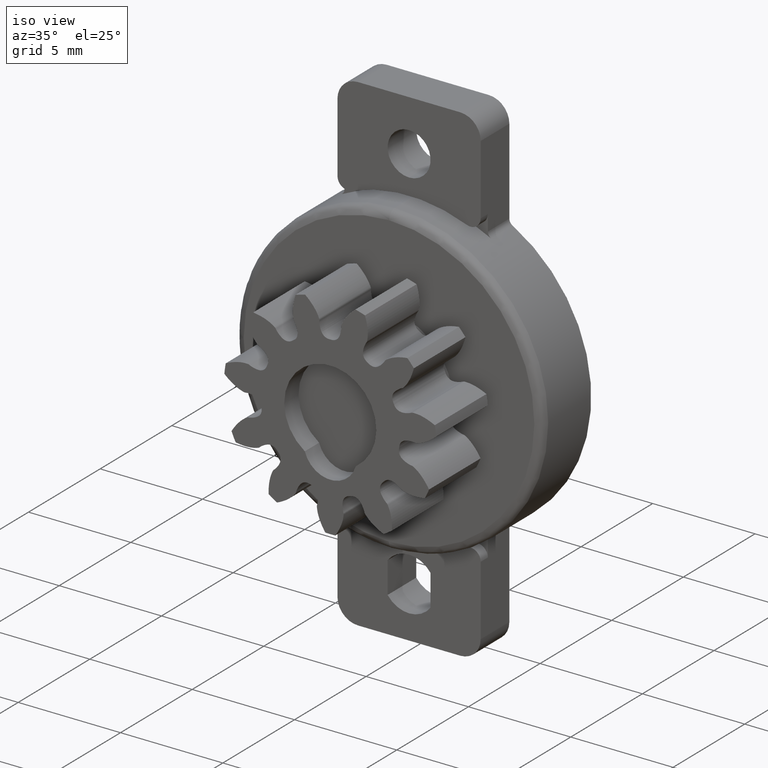
[diagram: clean part render]
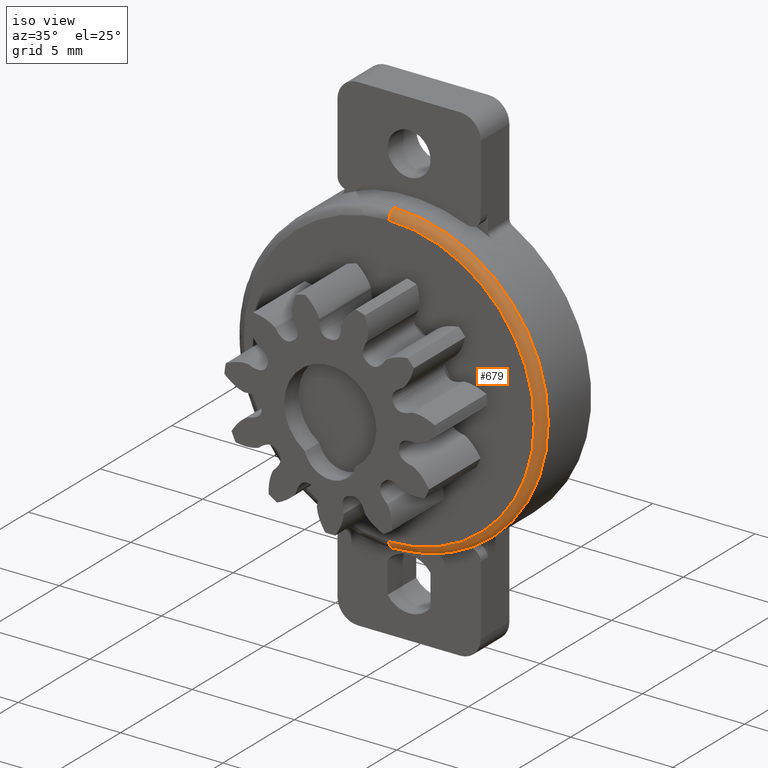
[diagram: same view with one face highlighted and labeled with its STEP entity id]
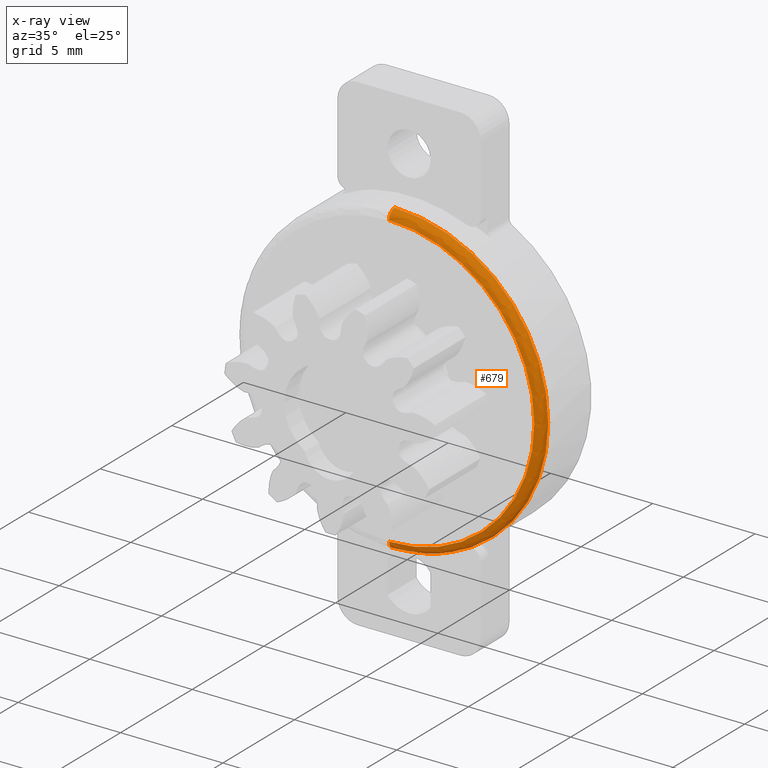
[diagram: x-ray of the same camera — body ghosted, the highlighted face saturated]
A machine part, iso view. The second image highlights one B-rep face of the part: STEP entity #679.
The next image is the same camera in x-ray: the body ghosted, the highlighted face saturated — about 0% of this face is hidden behind the body in this view.
In plain terms, the highlighted face is a freeform B-spline surface patch.
Its self-contained STEP definition (entity closure, byte-faithful):
#679=ADVANCED_FACE('',(#7083),#7082,.T.);
#7082=( BOUNDED_SURFACE() B_SPLINE_SURFACE( 2,2,((#10412,#10413,#10414,#10415,#10416),(#10417,#10418,#10419,#10420,#10421),(#10422,#10423,#10424,#10425,#10426),(#10427,#10428,#10429,#10430,#10431),(#10432,#10433,#10434,#10435,#10436)), .UNSPECIFIED.,.F.,.F.,.F.) B_SPLINE_SURFACE_WITH_KNOTS((3,2,3),(3,2,3),(0.00000000000E+00,5.00000000000E-01,1.00000000000E+00),(0.00000000000E+00,5.00000000000E-01,1.00000000000E+00), .UNSPECIFIED. ) GEOMETRIC_REPRESENTATION_ITEM() RATIONAL_B_SPLINE_SURFACE(((1.00000000000E+00,7.07106765760E-01,1.00000000000E+00,7.07106765760E-01,1.00000000000E+00),(7.07106781187E-01,4.99999989092E-01,7.07106781187E-01,4.99999989092E-01,7.07106781187E-01),(1.00000000000E+00,7.07106765760E-01,1.00000000000E+00,7.07106765760E-01,1.00000000000E+00),(7.07106781187E-01,4.99999989092E-01,7.07106781187E-01,4.99999989092E-01,7.07106781187E-01),(1.00000000000E+00,7.07106765760E-01,1.00000000000E+00,7.07106765760E-01,1.00000000000E+00))) REPRESENTATION_ITEM('') SURFACE() );
#7083=FACE_OUTER_BOUND('',#10437,.T.);
#10412=CARTESIAN_POINT('',(-3.03339938293E-20,-2.99999995499E+00,-7.50000002407E+00));
#10413=CARTESIAN_POINT('',(-3.03339938293E-20,-3.40000001745E+00,-7.50000002407E+00));
#10414=CARTESIAN_POINT('',(-2.87161805776E-20,-3.40000000000E+00,-7.09999996160E+00));
#10415=CARTESIAN_POINT('',(-2.70983673259E-20,-3.39999998255E+00,-6.69999989914E+00));
#10416=CARTESIAN_POINT('',(-2.70983674671E-20,-2.99999992008E+00,-6.69999993404E+00));
#10417=CARTESIAN_POINT('',(7.50000002407E+00,-2.99999995499E+00,-7.50000002407E+00));
#10418=CARTESIAN_POINT('',(7.50000002407E+00,-3.40000001745E+00,-7.50000002407E+00));
#10419=CARTESIAN_POINT('',(7.09999996160E+00,-3.40000000000E+00,-7.09999996160E+00));
#10420=CARTESIAN_POINT('',(6.69999989914E+00,-3.39999998255E+00,-6.69999989914E+00));
#10421=CARTESIAN_POINT('',(6.69999993404E+00,-2.99999992008E+00,-6.69999993404E+00));
#10422=CARTESIAN_POINT('',(7.50000002407E+00,-2.99999995499E+00,-4.59272885148E-16));
#10423=CARTESIAN_POINT('',(7.50000002407E+00,-3.40000001745E+00,-4.59272885148E-16));
#10424=CARTESIAN_POINT('',(7.09999996160E+00,-3.40000000000E+00,-4.34778327527E-16));
#10425=CARTESIAN_POINT('',(6.69999989914E+00,-3.39999998255E+00,-4.10283769906E-16));
#10426=CARTESIAN_POINT('',(6.69999993404E+00,-2.99999992008E+00,-4.10283772043E-16));
#10427=CARTESIAN_POINT('',(7.50000002407E+00,-2.99999995499E+00,7.50000002407E+00));
#10428=CARTESIAN_POINT('',(7.50000002407E+00,-3.40000001745E+00,7.50000002407E+00));
#10429=CARTESIAN_POINT('',(7.09999996160E+00,-3.40000000000E+00,7.09999996160E+00));
#10430=CARTESIAN_POINT('',(6.69999989914E+00,-3.39999998255E+00,6.69999989914E+00));
#10431=CARTESIAN_POINT('',(6.69999993404E+00,-2.99999992008E+00,6.69999993404E+00));
#10432=CARTESIAN_POINT('',(9.18515436302E-16,-2.99999995499E+00,7.50000002407E+00));
#10433=CARTESIAN_POINT('',(9.18515436302E-16,-3.40000001745E+00,7.50000002407E+00));
#10434=CARTESIAN_POINT('',(8.69527938873E-16,-3.40000000000E+00,7.09999996160E+00));
#10435=CARTESIAN_POINT('',(8.20540441444E-16,-3.39999998255E+00,6.69999989914E+00));
#10436=CARTESIAN_POINT('',(8.20540445719E-16,-2.99999992008E+00,6.69999993404E+00));
#10437=EDGE_LOOP('',(#14246,#14247,#14248,#14249));
#14246=ORIENTED_EDGE('',*,*,#16177,.T.);
#14247=ORIENTED_EDGE('',*,*,#16174,.T.);
#14248=ORIENTED_EDGE('',*,*,#14314,.F.);
#14249=ORIENTED_EDGE('',*,*,#16176,.F.);
#14314=EDGE_CURVE('',#16459,#16460,#16461,.T.);
#16174=EDGE_CURVE('',#28850,#16460,#28851,.T.);
#16176=EDGE_CURVE('',#28857,#16459,#28864,.T.);
#16177=EDGE_CURVE('',#28857,#28850,#28870,.T.);
#16459=VERTEX_POINT('',#29083);
#16460=VERTEX_POINT('',#29084);
#16461=CIRCLE('',#29088,7.10000000000E+00);
#28850=VERTEX_POINT('',#36012);
#28851=(BOUNDED_CURVE() B_SPLINE_CURVE(2,(#36013,#36014,#36015),.UNSPECIFIED.,.F.,.F.) B_SPLINE_CURVE_WITH_KNOTS((3,3),(0.00000000000E+00,4.99999960263E-01),.UNSPECIFIED.) CURVE() GEOMETRIC_REPRESENTATION_ITEM() RATIONAL_B_SPLINE_CURVE((1.00000000000E+00,7.07106765760E-01,1.00000000000E+00)) REPRESENTATION_ITEM('') );
#28857=VERTEX_POINT('',#36016);
#28864=(BOUNDED_CURVE() B_SPLINE_CURVE(2,(#36021,#36022,#36023),.UNSPECIFIED.,.F.,.F.) B_SPLINE_CURVE_WITH_KNOTS((3,3),(0.00000000000E+00,5.00000000000E-01),.UNSPECIFIED.) CURVE() GEOMETRIC_REPRESENTATION_ITEM() RATIONAL_B_SPLINE_CURVE((7.50000000000E-01,5.30330074320E-01,7.50000000000E-01)) REPRESENTATION_ITEM('') );
#28870=CIRCLE('',#36027,7.50000002407E+00);
#29083=CARTESIAN_POINT('',(0.00000000000E+00,-3.40000000000E+00,-7.10000000000E+00));
#29084=CARTESIAN_POINT('',(2.96059473233E-16,-3.40000000000E+00,7.10000000000E+00));
#29085=CARTESIAN_POINT('',(0.00000000000E+00,-3.40000000000E+00,0.00000000000E+00));
#29086=DIRECTION('',(0.00000000000E+00,-1.00000000000E+00,-0.00000000000E+00));
#29087=DIRECTION('',(-1.22460635382E-16,0.00000000000E+00,-1.00000000000E+00));
#29088=AXIS2_PLACEMENT_3D('',#29085,#29086,#29087);
#36012=CARTESIAN_POINT('',(8.88178419700E-16,-2.99999992008E+00,7.50000002407E+00));
#36013=CARTESIAN_POINT('',(-9.18454768314E-16,-2.99999995499E+00,7.50000002407E+00));
#36014=CARTESIAN_POINT('',(-9.18454768314E-16,-3.40000001745E+00,7.50000002407E+00));
#36015=CARTESIAN_POINT('',(-8.69470506512E-16,-3.40000000000E+00,7.09999996160E+00));
#36016=CARTESIAN_POINT('',(0.00000000000E+00,-2.99999992008E+00,-7.50000002407E+00));
#36021=CARTESIAN_POINT('',(1.48029736617E-15,-2.99999995499E+00,-7.50000002407E+00));
#36022=CARTESIAN_POINT('',(8.37382662900E-16,-3.40000001745E+00,-7.50000002407E+00));
#36023=CARTESIAN_POINT('',(5.92118946467E-16,-3.40000000000E+00,-7.09999996160E+00));
#36024=CARTESIAN_POINT('',(0.00000000000E+00,-2.99999992008E+00,0.00000000000E+00));
#36025=DIRECTION('',(0.00000000000E+00,-1.00000000000E+00,-0.00000000000E+00));
#36026=DIRECTION('',(-1.22460635382E-16,0.00000000000E+00,-1.00000000000E+00));
#36027=AXIS2_PLACEMENT_3D('',#36024,#36025,#36026);